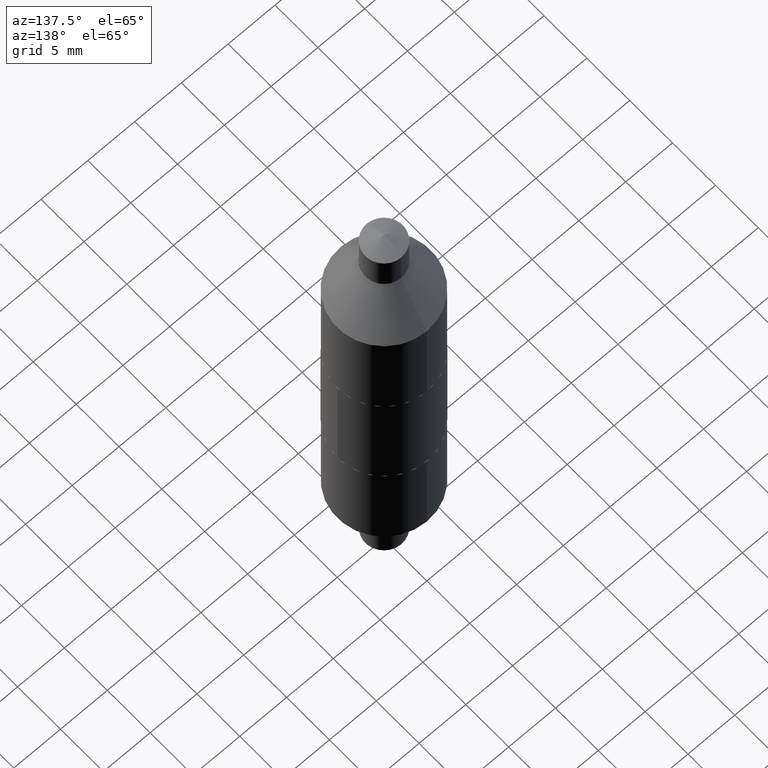
[diagram: clean part render]
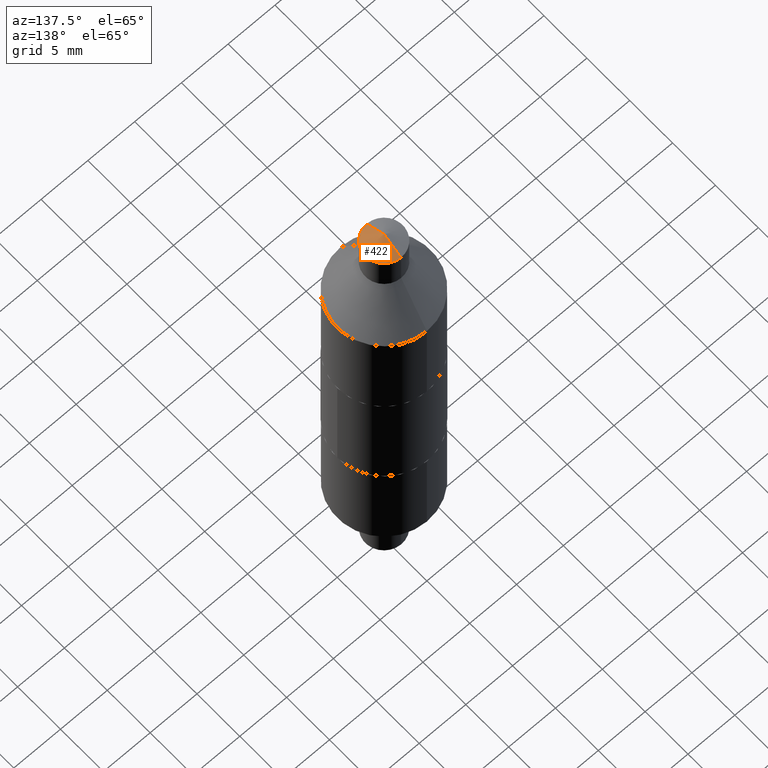
[diagram: same view with one face highlighted and labeled with its STEP entity id]
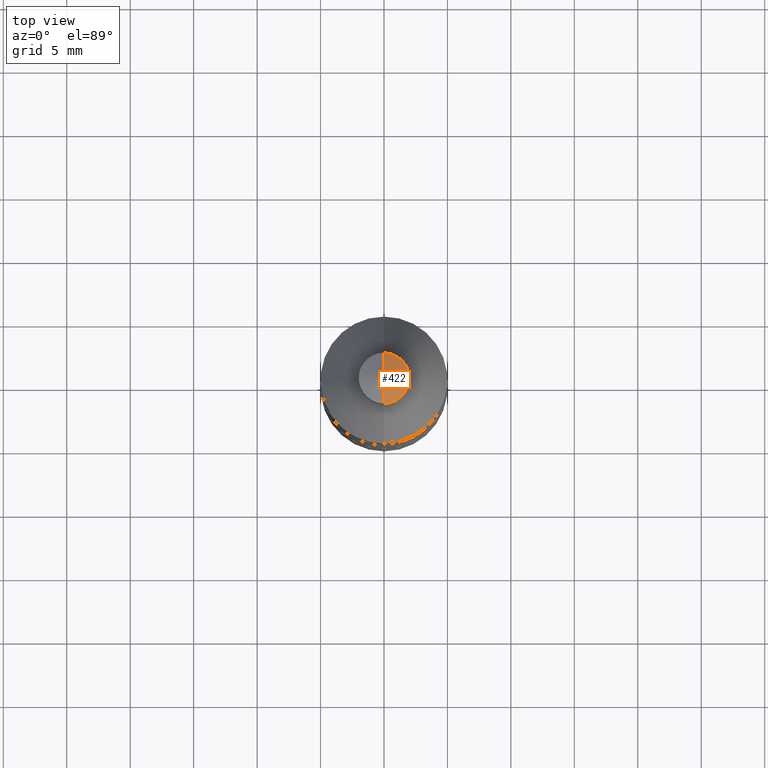
[diagram: same view with one face highlighted and labeled with its STEP entity id]
A machine part, auxiliary view. The second image highlights one B-rep face of the part: STEP entity #422.
A second angle (top view) of the same face is appended — the face is thin or edge-on in the first view.
In plain terms, the highlighted conical surface has half-angle 59 deg.
Its self-contained STEP definition (entity closure, byte-faithful):
#78 = EDGE_CURVE ( 'NONE', #579, #106, #525, .T. ) ;
#95 = ORIENTED_EDGE ( 'NONE', *, *, #325, .T. ) ;
#106 = VERTEX_POINT ( 'NONE', #465 ) ;
#165 = ORIENTED_EDGE ( 'NONE', *, *, #542, .F. ) ;
#167 = CIRCLE ( 'NONE', #635, 0.07875000000000001443 ) ;
#183 = CARTESIAN_POINT ( 'NONE',  ( -2.585602662008955522E-29, 3.659236508954140551E-15, 1.052682226251580033 ) ) ;
#189 = VECTOR ( 'NONE', #686, 39.37007874015749564 ) ;
#191 = CONICAL_SURFACE ( 'NONE', #681, 65.52281426576890055, 1.029744258676657642 ) ;
#194 = FACE_OUTER_BOUND ( 'NONE', #532, .T. ) ;
#323 = ORIENTED_EDGE ( 'NONE', *, *, #78, .T. ) ;
#325 = EDGE_CURVE ( 'NONE', #106, #331, #167, .T. ) ;
#331 = VERTEX_POINT ( 'NONE', #692 ) ;
#381 = CARTESIAN_POINT ( 'NONE',  ( -2.698420284295517457E-29, 3.828684813425824558E-15, 1.100000000000000089 ) ) ;
#405 = DIRECTION ( 'NONE',  ( -2.459654028991429845E-29, 3.471167292411791598E-15, 1.000000000000000000 ) ) ;
#407 = DIRECTION ( 'NONE',  ( -6.982962677686263555E-15, -1.000000000000000000, 3.468864327941569365E-15 ) ) ;
#422 = ADVANCED_FACE ( 'NONE', ( #194 ), #191, .T. ) ;
#465 = CARTESIAN_POINT ( 'NONE',  ( -5.499083108678193781E-16, -0.07874999999999636457, 1.052682226251580477 ) ) ;
#470 = CARTESIAN_POINT ( 'NONE',  ( 9.413478478008603382E-28, -1.328366452049720735E-13, -38.27007874015748001 ) ) ;
#523 = CARTESIAN_POINT ( 'NONE',  ( -2.705619431890573082E-29, 3.818284021652970718E-15, 1.100000000000000089 ) ) ;
#525 = LINE ( 'NONE', #523, #189 ) ;
#532 = EDGE_LOOP ( 'NONE', ( #165, #323, #95 ) ) ;
#542 = EDGE_CURVE ( 'NONE', #579, #331, #643, .T. ) ;
#570 = VECTOR ( 'NONE', #596, 39.37007874015748143 ) ;
#579 = VERTEX_POINT ( 'NONE', #591 ) ;
#591 = CARTESIAN_POINT ( 'NONE',  ( -2.705619431890573082E-29, 3.818284021652971507E-15, 1.100000000000000089 ) ) ;
#596 = DIRECTION ( 'NONE',  ( 5.880594550222091502E-15, 0.8571673007021122226, -0.5150380749100544886 ) ) ;
#621 = DIRECTION ( 'NONE',  ( -6.982962677686264344E-15, -1.000000000000000000, 3.469013325287952504E-15 ) ) ;
#635 = AXIS2_PLACEMENT_3D ( 'NONE', #183, #405, #621 ) ;
#643 = LINE ( 'NONE', #381, #570 ) ;
#681 = AXIS2_PLACEMENT_3D ( 'NONE', #470, #685, #407 ) ;
#685 = DIRECTION ( 'NONE',  ( 2.459654028991429845E-29, -3.471167292411791598E-15, -1.000000000000000000 ) ) ;
#686 = DIRECTION ( 'NONE',  ( -5.985567269335928658E-15, -0.8571673007021156643, -0.5150380749100483824 ) ) ;
#692 = CARTESIAN_POINT ( 'NONE',  ( 5.402642173244822517E-16, 0.07875000000000366429, 1.052682226251579811 ) ) ;